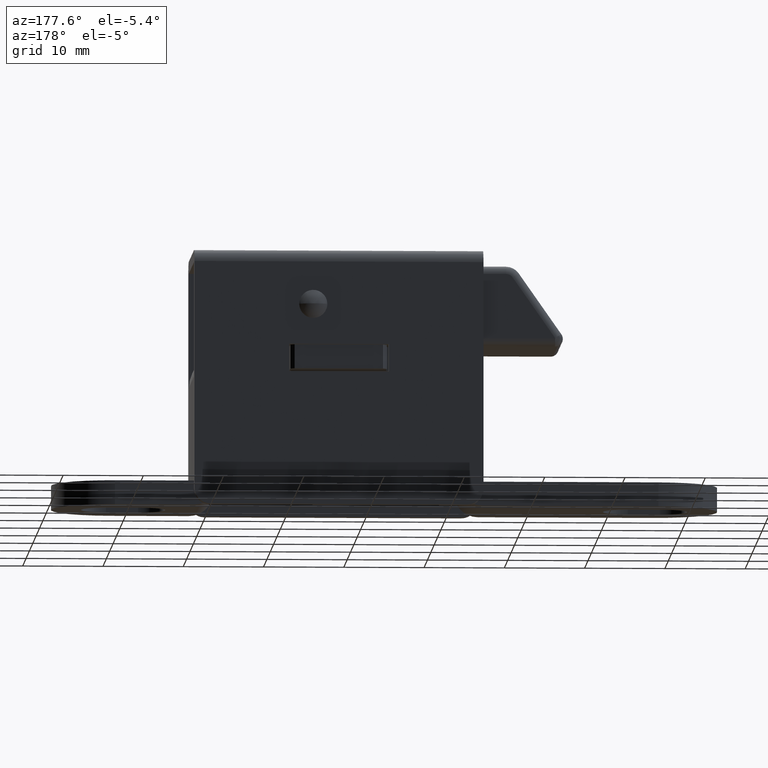
[diagram: clean part render]
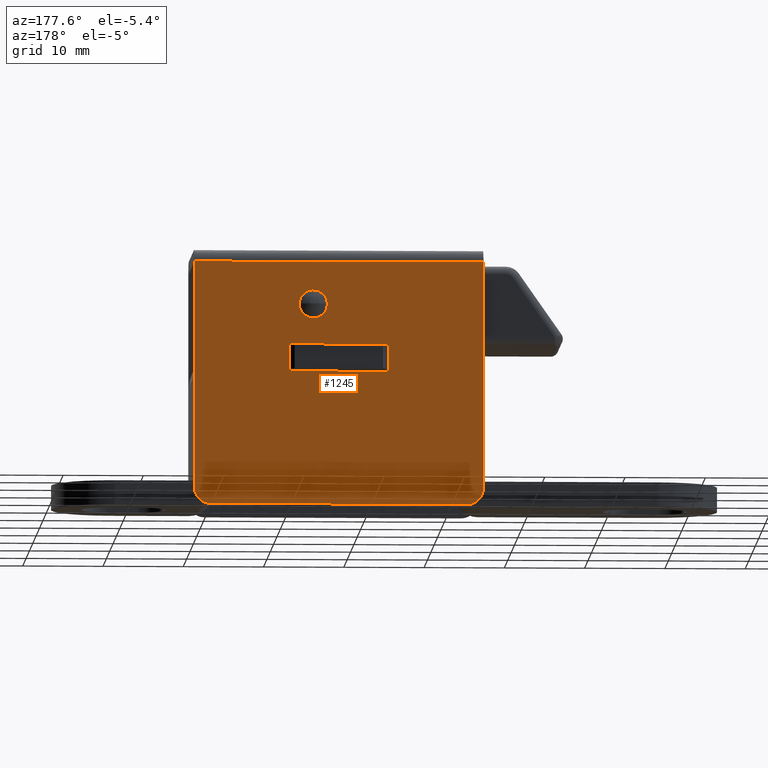
[diagram: same view with one face highlighted and labeled with its STEP entity id]
A machine part, auxiliary view. The second image highlights one B-rep face of the part: STEP entity #1245.
In plain terms, the highlighted planar face has unit normal (0, -1, 0).
Its self-contained STEP definition (entity closure, byte-faithful):
#29 = DIRECTION ( 'NONE',  ( 0.0000000000000000000, -0.0000000000000000000, -1.000000000000000000 ) ) ;
#44 = CARTESIAN_POINT ( 'NONE',  ( -24.69206391274186200, 9.250000000000005300, 23.06664584574761900 ) ) ;
#54 = CARTESIAN_POINT ( 'NONE',  ( -22.14528951121960900, 9.250000000000003600, 23.32002998592940600 ) ) ;
#71 = VECTOR ( 'NONE', #5409, 1000.000000000000000 ) ;
#167 = VERTEX_POINT ( 'NONE', #5183 ) ;
#183 = ORIENTED_EDGE ( 'NONE', *, *, #1930, .F. ) ;
#358 = EDGE_LOOP ( 'NONE', ( #1283, #183, #567, #3745 ) ) ;
#458 = VERTEX_POINT ( 'NONE', #2115 ) ;
#464 = FACE_BOUND ( 'NONE', #358, .T. ) ;
#474 = CARTESIAN_POINT ( 'NONE',  ( -48.09999999930000300, 9.250000000000000000, 30.32999999999999800 ) ) ;
#484 = CARTESIAN_POINT ( 'NONE',  ( -32.69999999929999700, 9.250000000000000000, 30.32999999999999800 ) ) ;
#495 = EDGE_LOOP ( 'NONE', ( #829, #2034, #5026, #3580, #4025, #3259 ) ) ;
#499 = CARTESIAN_POINT ( 'NONE',  ( -24.37601544422866000, 9.250000000000003600, 23.39886098641021300 ) ) ;
#521 = CARTESIAN_POINT ( 'NONE',  ( -21.90923479574700700, 9.250000000000001800, 23.06829984694309100 ) ) ;
#567 = ORIENTED_EDGE ( 'NONE', *, *, #4442, .F. ) ;
#790 = VERTEX_POINT ( 'NONE', #5387 ) ;
#806 = VECTOR ( 'NONE', #1658, 1000.000000000000000 ) ;
#822 = EDGE_CURVE ( 'NONE', #167, #5244, #3190, .T. ) ;
#829 = ORIENTED_EDGE ( 'NONE', *, *, #920, .F. ) ;
#920 = EDGE_CURVE ( 'NONE', #1957, #458, #4017, .T. ) ;
#947 = CARTESIAN_POINT ( 'NONE',  ( -23.75974626936473300, 9.250000000000003600, 23.70384266055447100 ) ) ;
#960 = CARTESIAN_POINT ( 'NONE',  ( -21.72759713981176700, 9.249999999994770400, 22.77667397507081000 ) ) ;
#1013 = EDGE_CURVE ( 'NONE', #1805, #790, #5022, .T. ) ;
#1245 = ADVANCED_FACE ( 'NONE', ( #2841, #464, #1644 ), #4505, .F. ) ;
#1279 = CARTESIAN_POINT ( 'NONE',  ( -48.09999999930000300, 9.250000000000000000, -3.000000000040001800 ) ) ;
#1283 = ORIENTED_EDGE ( 'NONE', *, *, #5243, .F. ) ;
#1343 = DIRECTION ( 'NONE',  ( 1.000000000000000000, 0.0000000000000000000, 0.0000000000000000000 ) ) ;
#1362 = CARTESIAN_POINT ( 'NONE',  ( -22.83916576287073100, 9.249999999999996400, 20.29646381726889700 ) ) ;
#1374 = DIRECTION ( 'NONE',  ( -1.000000000000000000, 0.0000000000000000000, 0.0000000000000000000 ) ) ;
#1382 = CARTESIAN_POINT ( 'NONE',  ( -23.18716046260103500, 9.249999999999996400, 23.75008250765871800 ) ) ;
#1398 = CARTESIAN_POINT ( 'NONE',  ( -21.55002400025856000, 9.250000000000000000, 22.23137967193292400 ) ) ;
#1411 = CARTESIAN_POINT ( 'NONE',  ( -24.17602516023210400, 9.250000000000003600, 20.48074235735601400 ) ) ;
#1452 = CARTESIAN_POINT ( 'NONE',  ( -21.54998801849111700, 9.250000000000001800, 21.88463029014402400 ) ) ;
#1515 = CARTESIAN_POINT ( 'NONE',  ( -21.55000000911095600, 9.249999999999513300, 22.00018159540000100 ) ) ;
#1614 = CARTESIAN_POINT ( 'NONE',  ( -21.60568740919947200, 9.249999999999996400, 21.54746231619435500 ) ) ;
#1639 = CARTESIAN_POINT ( 'NONE',  ( -24.07554660960342500, 9.250000000000000000, 20.42705005686729400 ) ) ;
#1644 = FACE_OUTER_BOUND ( 'NONE', #495, .T. ) ;
#1658 = DIRECTION ( 'NONE',  ( 0.0000000000000000000, -0.0000000000000000000, -1.000000000000000000 ) ) ;
#1673 = CARTESIAN_POINT ( 'NONE',  ( -23.86370160159203400, 9.250000000000001800, 20.33931201854224800 ) ) ;
#1723 = DIRECTION ( 'NONE',  ( 0.0000000000000000000, -4.761815941556335500E-013, 1.000000000000000000 ) ) ;
#1724 = CARTESIAN_POINT ( 'NONE',  ( -48.09999999930000300, 9.250000000000000000, 17.00000000000000000 ) ) ;
#1805 = VERTEX_POINT ( 'NONE', #2035 ) ;
#1808 = DIRECTION ( 'NONE',  ( 1.000000000000000000, 0.0000000000000000000, 0.0000000000000000000 ) ) ;
#1814 = CARTESIAN_POINT ( 'NONE',  ( -25.03865842935753600, 9.249999999999996400, 22.22926657562517500 ) ) ;
#1821 = LINE ( 'NONE', #484, #4191 ) ;
#1833 = CARTESIAN_POINT ( 'NONE',  ( -22.84682537928894400, 9.250000000000000000, 23.69417290658665100 ) ) ;
#1930 = EDGE_CURVE ( 'NONE', #2302, #3029, #1981, .T. ) ;
#1947 = CARTESIAN_POINT ( 'NONE',  ( -21.56130852317098600, 9.250000000000001800, 21.77100773148830400 ) ) ;
#1957 = VERTEX_POINT ( 'NONE', #5266 ) ;
#1966 = B_SPLINE_CURVE_WITH_KNOTS ( 'NONE', 3,
 ( #4043, #4465, #1814, #4901, #2270, #5353, #2727, #44, #3178, #499, #3619, #947, #4058, #1382, #4489, #1833, #4917, #2290, #5374, #2745, #54, #3200, #521, #3635, #960, #4079, #1398, #4499 ),
 .UNSPECIFIED., .F., .F.,
 ( 4, 2, 2, 2, 2, 2, 2, 2, 2, 2, 2, 2, 2, 4 ),
 ( 0.0000000000000000000, 0.0003418748414128867800, 0.0006837496828257735600, 0.001025624524238660200, 0.001367499365651547100, 0.002051249048477327800, 0.002734998731303108600, 0.003076873572716003900, 0.003418748414128899200, 0.003760623255541794600, 0.004102498096954689500, 0.004444372938367584400, 0.004786247779780480200, 0.005469997462606277000 ),
 .UNSPECIFIED. ) ;
#1981 = LINE ( 'NONE', #3185, #2469 ) ;
#2034 = ORIENTED_EDGE ( 'NONE', *, *, #2431, .F. ) ;
#2035 = CARTESIAN_POINT ( 'NONE',  ( -10.49999999970000000, 9.250000000004998700, -3.000000000040019100 ) ) ;
#2115 = CARTESIAN_POINT ( 'NONE',  ( -42.49999999930000200, 9.250000000000476100, -3.000000000039464400 ) ) ;
#2225 = DIRECTION ( 'NONE',  ( 0.0000000000000000000, -1.000000000000000000, 0.0000000000000000000 ) ) ;
#2270 = CARTESIAN_POINT ( 'NONE',  ( -24.96058409539243800, 9.249999999999998200, 22.56401662067948200 ) ) ;
#2290 = CARTESIAN_POINT ( 'NONE',  ( -22.52588293894715600, 9.250000000000000000, 23.57365154385486500 ) ) ;
#2302 = VERTEX_POINT ( 'NONE', #3019 ) ;
#2382 = CARTESIAN_POINT ( 'NONE',  ( -44.49999999930000200, 9.250000000000000000, -3.980000000050000000 ) ) ;
#2431 = EDGE_CURVE ( 'NONE', #5244, #1957, #2816, .T. ) ;
#2451 = LINE ( 'NONE', #1724, #3510 ) ;
#2469 = VECTOR ( 'NONE', #3624, 1000.000000000000000 ) ;
#2473 = CARTESIAN_POINT ( 'NONE',  ( -24.36619385524662800, 9.250000000000000000, 20.60759397839132800 ) ) ;
#2509 = EDGE_CURVE ( 'NONE', #5087, #3108, #2451, .T. ) ;
#2574 = CARTESIAN_POINT ( 'NONE',  ( -24.45624638027824800, 9.249999999999998200, 20.68143470315573800 ) ) ;
#2577 = DIRECTION ( 'NONE',  ( -0.0000000000000000000, -1.000000000000000000, -4.764707147350000100E-013 ) ) ;
#2609 = CARTESIAN_POINT ( 'NONE',  ( -21.55000000911095600, 9.249999999999513300, 22.00018159540000100 ) ) ;
#2624 = CARTESIAN_POINT ( 'NONE',  ( -42.49999999930000200, 9.250000000000000000, -1.000000000039285200 ) ) ;
#2630 = EDGE_CURVE ( 'NONE', #4112, #5404, #4342, .T. ) ;
#2646 = LINE ( 'NONE', #1279, #4967 ) ;
#2650 = EDGE_CURVE ( 'NONE', #458, #1805, #2646, .T. ) ;
#2707 = CARTESIAN_POINT ( 'NONE',  ( -24.69839413897104300, 9.249999999999998200, 20.92339683740415900 ) ) ;
#2712 = CARTESIAN_POINT ( 'NONE',  ( -44.49999999929998800, 9.250000000000000000, 27.30000000000000400 ) ) ;
#2727 = CARTESIAN_POINT ( 'NONE',  ( -24.81902709953038100, 9.250000000000000000, 22.87643138249663000 ) ) ;
#2739 = CARTESIAN_POINT ( 'NONE',  ( -21.90753900838300800, 9.250000000000000000, 20.93387788402636600 ) ) ;
#2745 = CARTESIAN_POINT ( 'NONE',  ( -22.23369584300250100, 9.250000000000005300, 23.39229903432765300 ) ) ;
#2787 = CARTESIAN_POINT ( 'NONE',  ( -8.499999999690000900, 9.250000000000000000, -3.980000000050000000 ) ) ;
#2788 = AXIS2_PLACEMENT_3D ( 'NONE', #2624, #5256, #1723 ) ;
#2816 = LINE ( 'NONE', #2382, #5002 ) ;
#2840 = CARTESIAN_POINT ( 'NONE',  ( -25.00356015444393900, 9.250000000000001800, 21.53925436729992900 ) ) ;
#2841 = FACE_BOUND ( 'NONE', #4399, .T. ) ;
#3019 = CARTESIAN_POINT ( 'NONE',  ( -20.29999999930350200, 9.250000000007498000, 13.59999999999999800 ) ) ;
#3029 = VERTEX_POINT ( 'NONE', #3359 ) ;
#3063 = CARTESIAN_POINT ( 'NONE',  ( -22.22332377197186700, 9.250000000000000000, 20.60166222845495200 ) ) ;
#3072 = CARTESIAN_POINT ( 'NONE',  ( -23.52908278555942800, 9.250000000000001800, 20.26132045793692500 ) ) ;
#3075 = CARTESIAN_POINT ( 'NONE',  ( -23.75262557721182300, 9.250000000000005300, 20.30571089853359000 ) ) ;
#3108 = VERTEX_POINT ( 'NONE', #3614 ) ;
#3151 = CARTESIAN_POINT ( 'NONE',  ( -23.41545871189418200, 9.249999999999730000, 20.24999393309126800 ) ) ;
#3178 = CARTESIAN_POINT ( 'NONE',  ( -24.61816308220874900, 9.250000000000003600, 23.15670930314395200 ) ) ;
#3185 = CARTESIAN_POINT ( 'NONE',  ( -48.09999999930000300, 9.250000000000000000, 13.59999999999999800 ) ) ;
#3190 = LINE ( 'NONE', #4480, #5520 ) ;
#3200 = CARTESIAN_POINT ( 'NONE',  ( -21.98184468276557600, 9.250000000000001800, 23.15685004922716000 ) ) ;
#3225 = CARTESIAN_POINT ( 'NONE',  ( -22.41836811821410800, 9.250000000000000000, 20.47123286755121900 ) ) ;
#3249 = CARTESIAN_POINT ( 'NONE',  ( -23.06880681837302700, 9.249999999999728200, 20.25001214102747200 ) ) ;
#3259 = ORIENTED_EDGE ( 'NONE', *, *, #2650, .F. ) ;
#3351 = CARTESIAN_POINT ( 'NONE',  ( -21.63928316302696000, 9.250000000000000000, 21.43638355228311500 ) ) ;
#3359 = CARTESIAN_POINT ( 'NONE',  ( -32.69999999929984100, 9.250000000004998700, 13.59999999999999800 ) ) ;
#3382 = CARTESIAN_POINT ( 'NONE',  ( -25.04999999971050400, 9.249999999999992900, 21.76889738824378300 ) ) ;
#3510 = VECTOR ( 'NONE', #1343, 1000.000000000000000 ) ;
#3574 = AXIS2_PLACEMENT_3D ( 'NONE', #474, #2225, #29 ) ;
#3580 = ORIENTED_EDGE ( 'NONE', *, *, #5275, .T. ) ;
#3600 = DIRECTION ( 'NONE',  ( -0.0000000000000000000, 0.0000000000000000000, 1.000000000000000000 ) ) ;
#3614 = CARTESIAN_POINT ( 'NONE',  ( -20.29999999930031500, 9.250000000007498000, 17.00000000000000000 ) ) ;
#3619 = CARTESIAN_POINT ( 'NONE',  ( -24.18081976248072000, 9.250000000000001800, 23.52924915886551500 ) ) ;
#3624 = DIRECTION ( 'NONE',  ( -1.000000000000000000, -0.0000000000000000000, -0.0000000000000000000 ) ) ;
#3635 = CARTESIAN_POINT ( 'NONE',  ( -21.78240825887696300, 9.250000000000001800, 22.87886729583639000 ) ) ;
#3645 = LINE ( 'NONE', #2787, #71 ) ;
#3686 = AXIS2_PLACEMENT_3D ( 'NONE', #5673, #2577, #5210 ) ;
#3745 = ORIENTED_EDGE ( 'NONE', *, *, #2509, .F. ) ;
#3755 = CARTESIAN_POINT ( 'NONE',  ( -24.82881294884322200, 9.250000000000000000, 21.11844755946376000 ) ) ;
#3769 = CARTESIAN_POINT ( 'NONE',  ( -21.78069669762286200, 9.250000000000003600, 21.12405396581462500 ) ) ;
#4000 = ORIENTED_EDGE ( 'NONE', *, *, #5247, .F. ) ;
#4017 = CIRCLE ( 'NONE', #2788, 2.000000000000000000 ) ;
#4025 = ORIENTED_EDGE ( 'NONE', *, *, #1013, .F. ) ;
#4043 = CARTESIAN_POINT ( 'NONE',  ( -25.04999999971050100, 9.250000000000000000, 22.00000000000000000 ) ) ;
#4058 = CARTESIAN_POINT ( 'NONE',  ( -23.52949632169913500, 9.250000000000000000, 23.74983359696332400 ) ) ;
#4079 = CARTESIAN_POINT ( 'NONE',  ( -21.59563995720897000, 9.249999999994775700, 22.45863898085441300 ) ) ;
#4112 = VERTEX_POINT ( 'NONE', #2609 ) ;
#4190 = CARTESIAN_POINT ( 'NONE',  ( -25.04999999971050100, 9.250000000000000000, 22.00000000000000000 ) ) ;
#4191 = VECTOR ( 'NONE', #3600, 1000.000000000000000 ) ;
#4342 = B_SPLINE_CURVE_WITH_KNOTS ( 'NONE', 3,
 ( #1515, #1452, #1947, #1614, #3351, #5529, #3769, #2739, #5507, #3063, #3225, #1362, #3249, #3151, #3072, #3075, #1673, #1639, #1411, #2473, #2574, #2707, #3755, #2840, #3382, #4483 ),
 .UNSPECIFIED., .F., .F.,
 ( 4, 2, 2, 2, 2, 2, 2, 2, 2, 2, 2, 2, 4 ),
 ( 8.441528768080324300E-017, 0.0003417336748805042800, 0.0006834673497609242100, 0.001025201024641343800, 0.001366934699521763900, 0.002050402049282610800, 0.002733869399043457900, 0.003075603073923886200, 0.003417336748804315000, 0.003759070423684743300, 0.004100804098565170300, 0.004784271448326035700, 0.005467738798086900200 ),
 .UNSPECIFIED. ) ;
#4399 = EDGE_LOOP ( 'NONE', ( #4000, #4614 ) ) ;
#4442 = EDGE_CURVE ( 'NONE', #3108, #2302, #5379, .T. ) ;
#4465 = CARTESIAN_POINT ( 'NONE',  ( -25.04999999971051100, 9.250000000000001800, 22.11559903888884500 ) ) ;
#4480 = CARTESIAN_POINT ( 'NONE',  ( 955.5000000009999900, 9.250000000000000000, 27.30000000000000100 ) ) ;
#4483 = CARTESIAN_POINT ( 'NONE',  ( -25.04999999971050100, 9.250000000000000000, 22.00000000000000000 ) ) ;
#4489 = CARTESIAN_POINT ( 'NONE',  ( -23.07125540071357500, 9.250000000000000000, 23.73875385907019700 ) ) ;
#4499 = CARTESIAN_POINT ( 'NONE',  ( -21.55000000911095600, 9.249999999999513300, 22.00018159540000100 ) ) ;
#4505 = PLANE ( 'NONE',  #3574 ) ;
#4614 = ORIENTED_EDGE ( 'NONE', *, *, #2630, .F. ) ;
#4727 = CARTESIAN_POINT ( 'NONE',  ( -32.69999999929650200, 9.250000000002499300, 17.00000000000000000 ) ) ;
#4734 = CARTESIAN_POINT ( 'NONE',  ( -20.29999999929999900, 9.250000000000000000, 30.32999999999999800 ) ) ;
#4901 = CARTESIAN_POINT ( 'NONE',  ( -24.99421985972598400, 9.249999999999998200, 22.45289663678555000 ) ) ;
#4917 = CARTESIAN_POINT ( 'NONE',  ( -22.73774408171070100, 9.249999999999998200, 23.66117569447407100 ) ) ;
#4967 = VECTOR ( 'NONE', #1808, 1000.000000000000000 ) ;
#5002 = VECTOR ( 'NONE', #5541, 1000.000000000000000 ) ;
#5022 = CIRCLE ( 'NONE', #3686, 2.000000000000000000 ) ;
#5026 = ORIENTED_EDGE ( 'NONE', *, *, #822, .F. ) ;
#5087 = VERTEX_POINT ( 'NONE', #4727 ) ;
#5183 = CARTESIAN_POINT ( 'NONE',  ( -8.499999999689983100, 9.250000000000000000, 27.30000000000000400 ) ) ;
#5210 = DIRECTION ( 'NONE',  ( 0.0000000000000000000, 4.761815941556335500E-013, -1.000000000000000000 ) ) ;
#5243 = EDGE_CURVE ( 'NONE', #3029, #5087, #1821, .T. ) ;
#5244 = VERTEX_POINT ( 'NONE', #2712 ) ;
#5247 = EDGE_CURVE ( 'NONE', #5404, #4112, #1966, .T. ) ;
#5256 = DIRECTION ( 'NONE',  ( 0.0000000000000000000, -1.000000000000000000, -4.764707147350000100E-013 ) ) ;
#5266 = CARTESIAN_POINT ( 'NONE',  ( -44.49999999930000200, 9.250000000000000000, -1.000000000039285500 ) ) ;
#5275 = EDGE_CURVE ( 'NONE', #167, #790, #3645, .T. ) ;
#5353 = CARTESIAN_POINT ( 'NONE',  ( -24.87276650161272700, 9.249999999999996400, 22.77592513667914200 ) ) ;
#5374 = CARTESIAN_POINT ( 'NONE',  ( -22.42337675552552400, 9.250000000000001800, 23.51889197882966400 ) ) ;
#5379 = LINE ( 'NONE', #4734, #806 ) ;
#5387 = CARTESIAN_POINT ( 'NONE',  ( -8.499999999692500200, 9.250000000004522600, -1.000000000042796400 ) ) ;
#5404 = VERTEX_POINT ( 'NONE', #4190 ) ;
#5409 = DIRECTION ( 'NONE',  ( -0.0000000000000000000, -0.0000000000000000000, -1.000000000000000000 ) ) ;
#5507 = CARTESIAN_POINT ( 'NONE',  ( -21.98137493917396100, 9.250000000000000000, 20.84382181068340900 ) ) ;
#5520 = VECTOR ( 'NONE', #1374, 1000.000000000000000 ) ;
#5529 = CARTESIAN_POINT ( 'NONE',  ( -21.72700973794009700, 9.249999999999998200, 21.22453526956099500 ) ) ;
#5541 = DIRECTION ( 'NONE',  ( -0.0000000000000000000, -0.0000000000000000000, -1.000000000000000000 ) ) ;
#5673 = CARTESIAN_POINT ( 'NONE',  ( -10.49999999970000200, 9.250000000009047000, -1.000000000045592600 ) ) ;